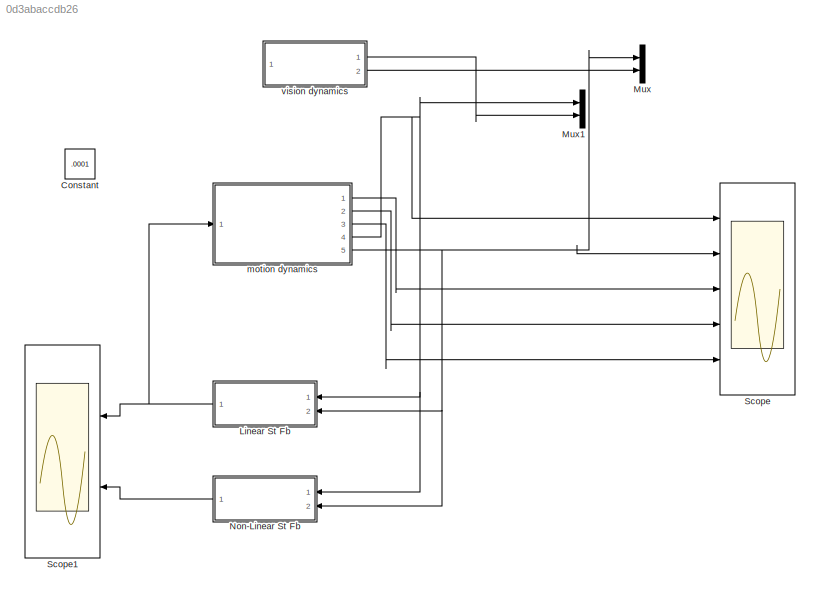
MODEL slx_0d3abaccdb26
KIND model
BLOCK [Constant] Constant
  Value = .0001
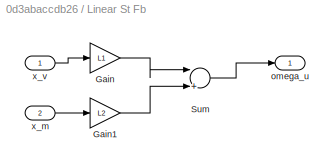
BLOCK [SubSystem] Linear St Fb
  Ports = [2, 1]
  RequestExecContextInheritance = off
BLOCK [Gain] Linear St Fb/Gain
  Gain = L1
  OutDataTypeStr = Inherit: Inherit via internal rule
  ParamDataTypeStr = Inherit: Inherit via internal rule
  SaturateOnIntegerOverflow = off
BLOCK [Gain] Linear St Fb/Gain1
  Gain = L2
  OutDataTypeStr = Inherit: Inherit via internal rule
  ParamDataTypeStr = Inherit: Inherit via internal rule
  SaturateOnIntegerOverflow = off
BLOCK [Sum] Linear St Fb/Sum
  InputSameDT = off
  Inputs = |++
  OutDataTypeStr = Inherit: Inherit via internal rule
  Ports = [2, 1]
  SaturateOnIntegerOverflow = off
BLOCK [Outport] Linear St Fb/omega_u
  IconDisplay = Port number
BLOCK [Inport] Linear St Fb/x_m
  IconDisplay = Port number
  Port = 2
BLOCK [Inport] Linear St Fb/x_v
  IconDisplay = Port number
BLOCK [Mux] Mux
  DisplayOption = bar
  Inputs = 2
  Ports = [2, 1]
BLOCK [Mux] Mux1
  DisplayOption = bar
  Inputs = 2
  Ports = [2, 1]
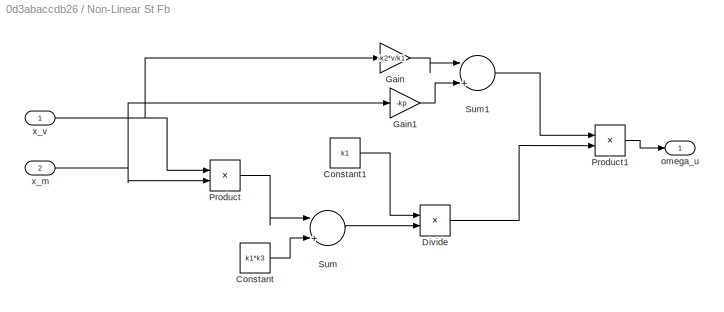
BLOCK [SubSystem] Non-Linear St Fb
  Ports = [2, 1]
  RequestExecContextInheritance = off
BLOCK [Constant] Non-Linear St Fb/Constant
  Value = k1*k3
BLOCK [Constant] Non-Linear St Fb/Constant1
  Value = k1
BLOCK [Product] Non-Linear St Fb/Divide
  InputSameDT = off
  Inputs = */
  OutDataTypeStr = Inherit: Inherit via internal rule
  Ports = [2, 1]
  RndMeth = Floor
  SaturateOnIntegerOverflow = off
BLOCK [Gain] Non-Linear St Fb/Gain
  Gain = -k2*v/k1
  OutDataTypeStr = Inherit: Inherit via internal rule
  ParamDataTypeStr = Inherit: Inherit via internal rule
  SaturateOnIntegerOverflow = off
BLOCK [Gain] Non-Linear St Fb/Gain1
  Gain = -kp
  OutDataTypeStr = Inherit: Inherit via internal rule
  ParamDataTypeStr = Inherit: Inherit via internal rule
  SaturateOnIntegerOverflow = off
BLOCK [Product] Non-Linear St Fb/Product
  InputSameDT = off
  OutDataTypeStr = Inherit: Inherit via internal rule
  Ports = [2, 1]
  RndMeth = Floor
  SaturateOnIntegerOverflow = off
BLOCK [Product] Non-Linear St Fb/Product1
  InputSameDT = off
  OutDataTypeStr = Inherit: Inherit via internal rule
  Ports = [2, 1]
  RndMeth = Floor
  SaturateOnIntegerOverflow = off
BLOCK [Sum] Non-Linear St Fb/Sum
  InputSameDT = off
  Inputs = |++
  OutDataTypeStr = Inherit: Inherit via internal rule
  Ports = [2, 1]
  SaturateOnIntegerOverflow = off
BLOCK [Sum] Non-Linear St Fb/Sum1
  InputSameDT = off
  Inputs = |++
  OutDataTypeStr = Inherit: Inherit via internal rule
  Ports = [2, 1]
  SaturateOnIntegerOverflow = off
BLOCK [Outport] Non-Linear St Fb/omega_u
  IconDisplay = Port number
BLOCK [Inport] Non-Linear St Fb/x_m
  IconDisplay = Port number
  Port = 2
BLOCK [Inport] Non-Linear St Fb/x_v
  IconDisplay = Port number
BLOCK [Scope] Scope
  Floating = off
  LimitDataPoints = off
  NumInputPorts = 5
  Ports = [5]
  ShowLegends = off
  YMax = 5~5~5~5~5
  YMin = -5~-5~-5~-5~-5
BLOCK [Scope] Scope1
  Floating = off
  LimitDataPoints = off
  NumInputPorts = 2
  Ports = [2]
  SaveName = ScopeData1
  ShowLegends = off
  YMax = 5~5
  YMin = -5~-5
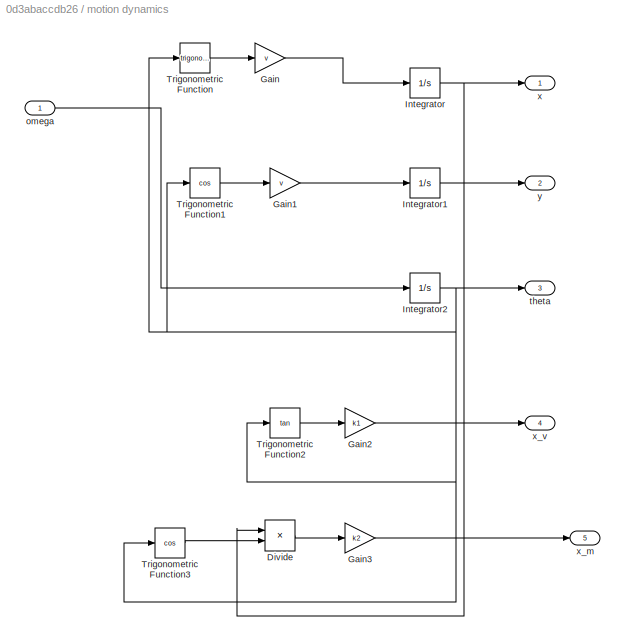
BLOCK [SubSystem] motion dynamics
  Ports = [1, 5]
  RequestExecContextInheritance = off
BLOCK [Product] motion dynamics/Divide
  InputSameDT = off
  Inputs = */
  OutDataTypeStr = Inherit: Inherit via internal rule
  Ports = [2, 1]
  RndMeth = Floor
  SaturateOnIntegerOverflow = off
BLOCK [Gain] motion dynamics/Gain
  Gain = v
  OutDataTypeStr = Inherit: Inherit via internal rule
  ParamDataTypeStr = Inherit: Inherit via internal rule
  SaturateOnIntegerOverflow = off
BLOCK [Gain] motion dynamics/Gain1
  Gain = v
  OutDataTypeStr = Inherit: Inherit via internal rule
  ParamDataTypeStr = Inherit: Inherit via internal rule
  SaturateOnIntegerOverflow = off
BLOCK [Gain] motion dynamics/Gain2
  Gain = k1
  OutDataTypeStr = Inherit: Inherit via internal rule
  ParamDataTypeStr = Inherit: Inherit via internal rule
  SaturateOnIntegerOverflow = off
BLOCK [Gain] motion dynamics/Gain3
  Gain = k2
  OutDataTypeStr = Inherit: Inherit via internal rule
  ParamDataTypeStr = Inherit: Inherit via internal rule
  SaturateOnIntegerOverflow = off
BLOCK [Integrator] motion dynamics/Integrator
  InitialCondition = x0
  Ports = [1, 1]
BLOCK [Integrator] motion dynamics/Integrator1
  InitialCondition = y0
  Ports = [1, 1]
BLOCK [Integrator] motion dynamics/Integrator2
  InitialCondition = theta0
  Ports = [1, 1]
BLOCK [Trigonometry] motion dynamics/Trigonometric Function
  Ports = [1, 1]
BLOCK [Trigonometry] motion dynamics/Trigonometric Function1
  Operator = cos
  Ports = [1, 1]
BLOCK [Trigonometry] motion dynamics/Trigonometric Function2
  Operator = tan
  Ports = [1, 1]
BLOCK [Trigonometry] motion dynamics/Trigonometric Function3
  Operator = cos
  Ports = [1, 1]
BLOCK [Inport] motion dynamics/omega
  IconDisplay = Port number
BLOCK [Outport] motion dynamics/theta
  IconDisplay = Port number
  Port = 3
BLOCK [Outport] motion dynamics/x
  IconDisplay = Port number
BLOCK [Outport] motion dynamics/x_m
  IconDisplay = Port number
  Port = 5
BLOCK [Outport] motion dynamics/x_v
  IconDisplay = Port number
  Port = 4
BLOCK [Outport] motion dynamics/y
  IconDisplay = Port number
  Port = 2
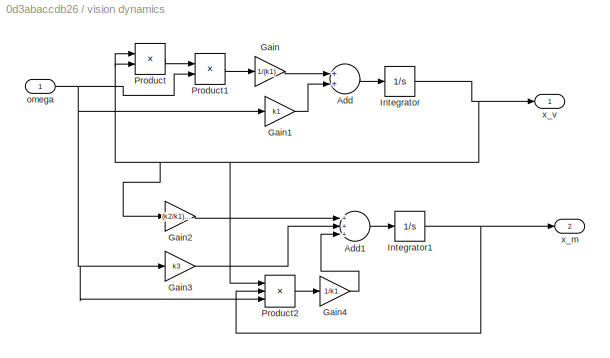
BLOCK [SubSystem] vision dynamics
  Ports = [1, 2]
  RequestExecContextInheritance = off
BLOCK [Sum] vision dynamics/Add
  InputSameDT = off
  OutDataTypeStr = Inherit: Inherit via internal rule
  Ports = [2, 1]
  SaturateOnIntegerOverflow = off
BLOCK [Sum] vision dynamics/Add1
  InputSameDT = off
  Inputs = +++
  OutDataTypeStr = Inherit: Inherit via internal rule
  Ports = [3, 1]
  SaturateOnIntegerOverflow = off
BLOCK [Gain] vision dynamics/Gain
  Gain = 1/(k1)
  OutDataTypeStr = Inherit: Inherit via internal rule
  ParamDataTypeStr = Inherit: Inherit via internal rule
  SaturateOnIntegerOverflow = off
BLOCK [Gain] vision dynamics/Gain1
  Gain = k1
  OutDataTypeStr = Inherit: Inherit via internal rule
  ParamDataTypeStr = Inherit: Inherit via internal rule
  SaturateOnIntegerOverflow = off
BLOCK [Gain] vision dynamics/Gain2
  Gain = (k2/k1)*v
  OutDataTypeStr = Inherit: Inherit via internal rule
  ParamDataTypeStr = Inherit: Inherit via internal rule
  SaturateOnIntegerOverflow = off
BLOCK [Gain] vision dynamics/Gain3
  Gain = k3
  OutDataTypeStr = Inherit: Inherit via internal rule
  ParamDataTypeStr = Inherit: Inherit via internal rule
  SaturateOnIntegerOverflow = off
BLOCK [Gain] vision dynamics/Gain4
  Gain = 1/k1
  OutDataTypeStr = Inherit: Inherit via internal rule
  ParamDataTypeStr = Inherit: Inherit via internal rule
  SaturateOnIntegerOverflow = off
BLOCK [Integrator] vision dynamics/Integrator
  InitialCondition = xv0
  Ports = [1, 1]
BLOCK [Integrator] vision dynamics/Integrator1
  InitialCondition = xm0
  Ports = [1, 1]
BLOCK [Product] vision dynamics/Product
  InputSameDT = off
  OutDataTypeStr = Inherit: Inherit via internal rule
  Ports = [2, 1]
  RndMeth = Floor
  SaturateOnIntegerOverflow = off
BLOCK [Product] vision dynamics/Product1
  InputSameDT = off
  OutDataTypeStr = Inherit: Inherit via internal rule
  Ports = [2, 1]
  RndMeth = Floor
  SaturateOnIntegerOverflow = off
BLOCK [Product] vision dynamics/Product2
  InputSameDT = off
  Inputs = 3
  OutDataTypeStr = Inherit: Inherit via internal rule
  Ports = [3, 1]
  RndMeth = Floor
  SaturateOnIntegerOverflow = off
BLOCK [Inport] vision dynamics/omega
  IconDisplay = Port number
BLOCK [Outport] vision dynamics/x_m
  IconDisplay = Port number
  Port = 2
BLOCK [Outport] vision dynamics/x_v
  IconDisplay = Port number
LINE Linear St Fb/Gain1:1 -> Linear St Fb/Sum:2
LINE Linear St Fb/Gain:1 -> Linear St Fb/Sum:1
LINE Linear St Fb/Sum:1 -> Linear St Fb/omega_u:1
LINE Linear St Fb/x_m:1 -> Linear St Fb/Gain1:1
LINE Linear St Fb/x_v:1 -> Linear St Fb/Gain:1
NET Linear St Fb:1 -> Scope1:1, motion dynamics:1
LINE Non-Linear St Fb/Constant1:1 -> Non-Linear St Fb/Divide:1
LINE Non-Linear St Fb/Constant:1 -> Non-Linear St Fb/Sum:2
LINE Non-Linear St Fb/Divide:1 -> Non-Linear St Fb/Product1:2
LINE Non-Linear St Fb/Gain1:1 -> Non-Linear St Fb/Sum1:2
LINE Non-Linear St Fb/Gain:1 -> Non-Linear St Fb/Sum1:1
LINE Non-Linear St Fb/Product1:1 -> Non-Linear St Fb/omega_u:1
LINE Non-Linear St Fb/Product:1 -> Non-Linear St Fb/Sum:1
LINE Non-Linear St Fb/Sum1:1 -> Non-Linear St Fb/Product1:1
LINE Non-Linear St Fb/Sum:1 -> Non-Linear St Fb/Divide:2
NET Non-Linear St Fb/x_m:1 -> Non-Linear St Fb/Gain1:1, Non-Linear St Fb/Product:2
NET Non-Linear St Fb/x_v:1 -> Non-Linear St Fb/Gain:1, Non-Linear St Fb/Product:1
LINE Non-Linear St Fb:1 -> Scope1:2
LINE motion dynamics/Divide:1 -> motion dynamics/Gain3:1
LINE motion dynamics/Gain1:1 -> motion dynamics/Integrator1:1
LINE motion dynamics/Gain2:1 -> motion dynamics/x_v:1
LINE motion dynamics/Gain3:1 -> motion dynamics/x_m:1
LINE motion dynamics/Gain:1 -> motion dynamics/Integrator:1
LINE motion dynamics/Integrator1:1 -> motion dynamics/y:1
NET motion dynamics/Integrator2:1 -> motion dynamics/Trigonometric Function1:1, motion dynamics/Trigonometric Function2:1, motion dynamics/Trigonometric Function3:1, motion dynamics/Trigonometric Function:1, motion dynamics/theta:1
NET motion dynamics/Integrator:1 -> motion dynamics/Divide:1, motion dynamics/x:1
LINE motion dynamics/Trigonometric Function1:1 -> motion dynamics/Gain1:1
LINE motion dynamics/Trigonometric Function2:1 -> motion dynamics/Gain2:1
LINE motion dynamics/Trigonometric Function3:1 -> motion dynamics/Divide:2
LINE motion dynamics/Trigonometric Function:1 -> motion dynamics/Gain:1
LINE motion dynamics/omega:1 -> motion dynamics/Integrator2:1
LINE motion dynamics:1 -> Scope:3
LINE motion dynamics:2 -> Scope:4
LINE motion dynamics:3 -> Scope:5
NET motion dynamics:4 -> Linear St Fb:1, Mux1:1, Non-Linear St Fb:1, Scope:1
NET motion dynamics:5 -> Linear St Fb:2, Mux:1, Non-Linear St Fb:2, Scope:2
LINE vision dynamics/Add1:1 -> vision dynamics/Integrator1:1
LINE vision dynamics/Add:1 -> vision dynamics/Integrator:1
LINE vision dynamics/Gain1:1 -> vision dynamics/Add:2
LINE vision dynamics/Gain2:1 -> vision dynamics/Add1:1
LINE vision dynamics/Gain3:1 -> vision dynamics/Add1:2
LINE vision dynamics/Gain4:1 -> vision dynamics/Add1:3
LINE vision dynamics/Gain:1 -> vision dynamics/Add:1
NET vision dynamics/Integrator1:1 -> vision dynamics/Product2:2, vision dynamics/x_m:1
NET vision dynamics/Integrator:1 -> vision dynamics/Gain2:1, vision dynamics/Product2:1, vision dynamics/Product:1, vision dynamics/Product:2, vision dynamics/x_v:1
LINE vision dynamics/Product1:1 -> vision dynamics/Gain:1
LINE vision dynamics/Product2:1 -> vision dynamics/Gain4:1
LINE vision dynamics/Product:1 -> vision dynamics/Product1:1
NET vision dynamics/omega:1 -> vision dynamics/Gain1:1, vision dynamics/Gain3:1, vision dynamics/Product1:2, vision dynamics/Product2:3
LINE vision dynamics:1 -> Mux1:2
LINE vision dynamics:2 -> Mux:2
note: NET lines group one-source signal fan-out (src -> all destinations, sorted); 1:1 wires keep LINE
